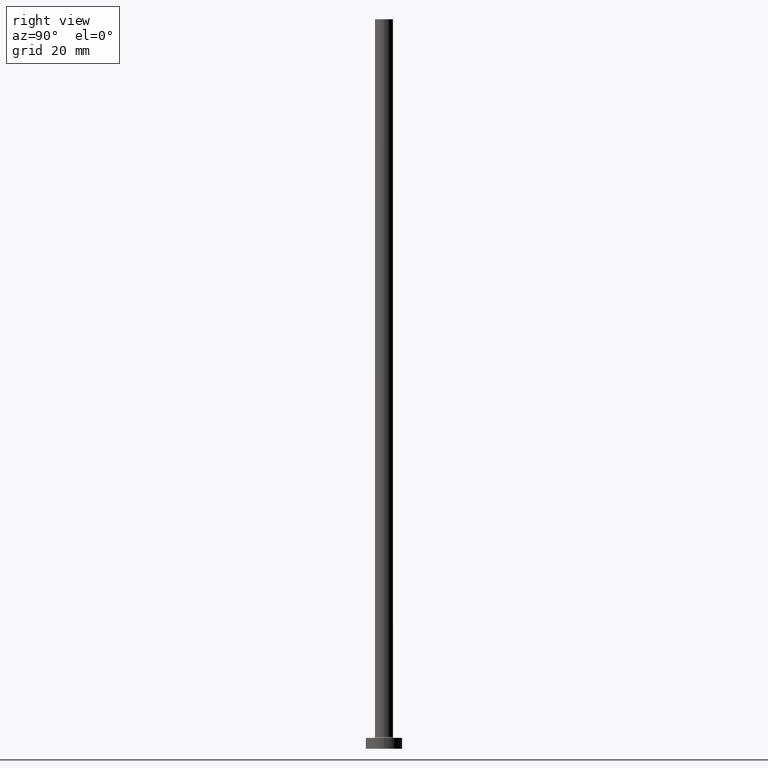
[diagram: clean part render]
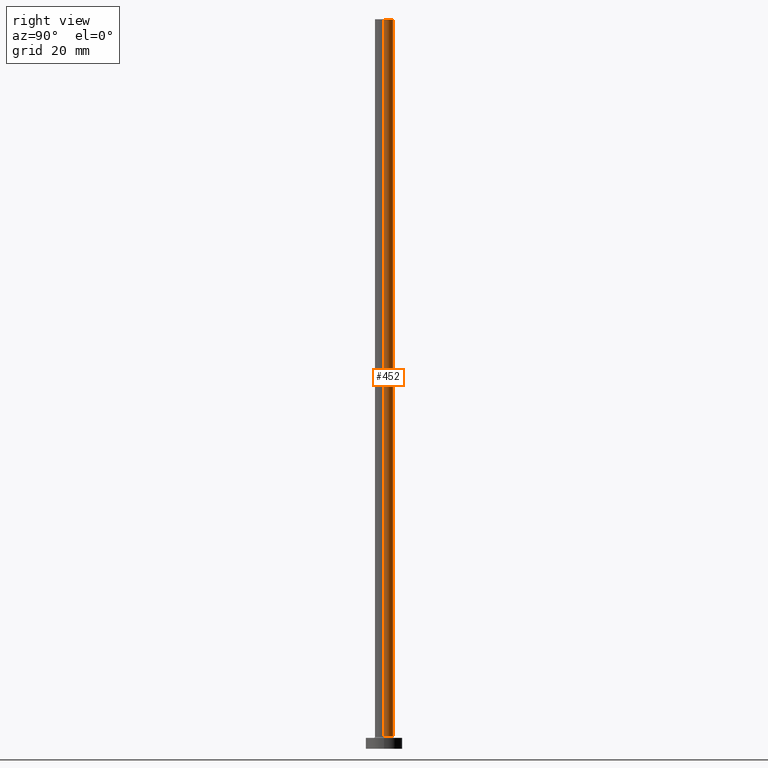
[diagram: same view with one face highlighted and labeled with its STEP entity id]
A machine part, right view. The second image highlights one B-rep face of the part: STEP entity #452.
In plain terms, the highlighted cylindrical surface (edge-blend (fillet) strip) has radius 2.5 mm, axis along (-0, -0, -1).
Its self-contained STEP definition (entity closure, byte-faithful):
#10 = ORIENTED_EDGE ( 'NONE', *, *, #12, .T. ) ;
#12 = EDGE_CURVE ( 'NONE', #100, #67, #64, .T. ) ;
#18 = CIRCLE ( 'NONE', #273, 2.500000000000000000 ) ;
#35 = CARTESIAN_POINT ( 'NONE',  ( 0.000000000000000000, 0.000000000000000000, 200.0000000000000000 ) ) ;
#48 = EDGE_CURVE ( 'NONE', #69, #86, #18, .T. ) ;
#49 = FACE_OUTER_BOUND ( 'NONE', #386, .T. ) ;
#52 = EDGE_CURVE ( 'NONE', #86, #67, #181, .T. ) ;
#57 = CARTESIAN_POINT ( 'NONE',  ( -2.500000000000000000, 0.000000000000000000, 200.0000000000000000 ) ) ;
#59 = DIRECTION ( 'NONE',  ( -0.000000000000000000, -0.000000000000000000, -1.000000000000000000 ) ) ;
#62 = DIRECTION ( 'NONE',  ( 1.000000000000000000, 0.000000000000000000, 0.000000000000000000 ) ) ;
#64 = CIRCLE ( 'NONE', #461, 2.500000000000000000 ) ;
#67 = VERTEX_POINT ( 'NONE', #305 ) ;
#69 = VERTEX_POINT ( 'NONE', #337 ) ;
#71 = DIRECTION ( 'NONE',  ( -0.000000000000000000, -0.000000000000000000, -1.000000000000000000 ) ) ;
#86 = VERTEX_POINT ( 'NONE', #340 ) ;
#99 = DIRECTION ( 'NONE',  ( -0.000000000000000000, -0.000000000000000000, -1.000000000000000000 ) ) ;
#100 = VERTEX_POINT ( 'NONE', #324 ) ;
#124 = AXIS2_PLACEMENT_3D ( 'NONE', #325, #71, #218 ) ;
#136 = CARTESIAN_POINT ( 'NONE',  ( 0.000000000000000000, 0.000000000000000000, 3.299999999999997158 ) ) ;
#162 = ORIENTED_EDGE ( 'NONE', *, *, #269, .T. ) ;
#181 = LINE ( 'NONE', #57, #421 ) ;
#202 = VECTOR ( 'NONE', #99, 1000.000000000000000 ) ;
#216 = LINE ( 'NONE', #306, #202 ) ;
#218 = DIRECTION ( 'NONE',  ( -1.000000000000000000, 0.000000000000000000, 0.000000000000000000 ) ) ;
#240 = ORIENTED_EDGE ( 'NONE', *, *, #48, .F. ) ;
#269 = EDGE_CURVE ( 'NONE', #69, #100, #216, .T. ) ;
#273 = AXIS2_PLACEMENT_3D ( 'NONE', #35, #375, #379 ) ;
#276 = DIRECTION ( 'NONE',  ( 0.000000000000000000, 0.000000000000000000, 1.000000000000000000 ) ) ;
#305 = CARTESIAN_POINT ( 'NONE',  ( -2.500000000000000000, 0.000000000000000000, 3.299999999999997158 ) ) ;
#306 = CARTESIAN_POINT ( 'NONE',  ( 2.500000000000000000, 3.061616997868383141E-16, 200.0000000000000000 ) ) ;
#324 = CARTESIAN_POINT ( 'NONE',  ( 2.500000000000000000, 3.061616997868383141E-16, 3.299999999999997158 ) ) ;
#325 = CARTESIAN_POINT ( 'NONE',  ( 0.000000000000000000, 0.000000000000000000, 200.0000000000000000 ) ) ;
#337 = CARTESIAN_POINT ( 'NONE',  ( 2.500000000000000000, 3.061616997868383141E-16, 200.0000000000000000 ) ) ;
#340 = CARTESIAN_POINT ( 'NONE',  ( -2.500000000000000000, 0.000000000000000000, 200.0000000000000000 ) ) ;
#359 = CYLINDRICAL_SURFACE ( 'NONE', #124, 2.500000000000000000 ) ;
#375 = DIRECTION ( 'NONE',  ( 0.000000000000000000, 0.000000000000000000, 1.000000000000000000 ) ) ;
#379 = DIRECTION ( 'NONE',  ( 1.000000000000000000, 0.000000000000000000, 0.000000000000000000 ) ) ;
#386 = EDGE_LOOP ( 'NONE', ( #240, #162, #10, #404 ) ) ;
#404 = ORIENTED_EDGE ( 'NONE', *, *, #52, .F. ) ;
#421 = VECTOR ( 'NONE', #59, 1000.000000000000000 ) ;
#452 = ADVANCED_FACE ( 'NONE', ( #49 ), #359, .T. ) ;
#461 = AXIS2_PLACEMENT_3D ( 'NONE', #136, #276, #62 ) ;